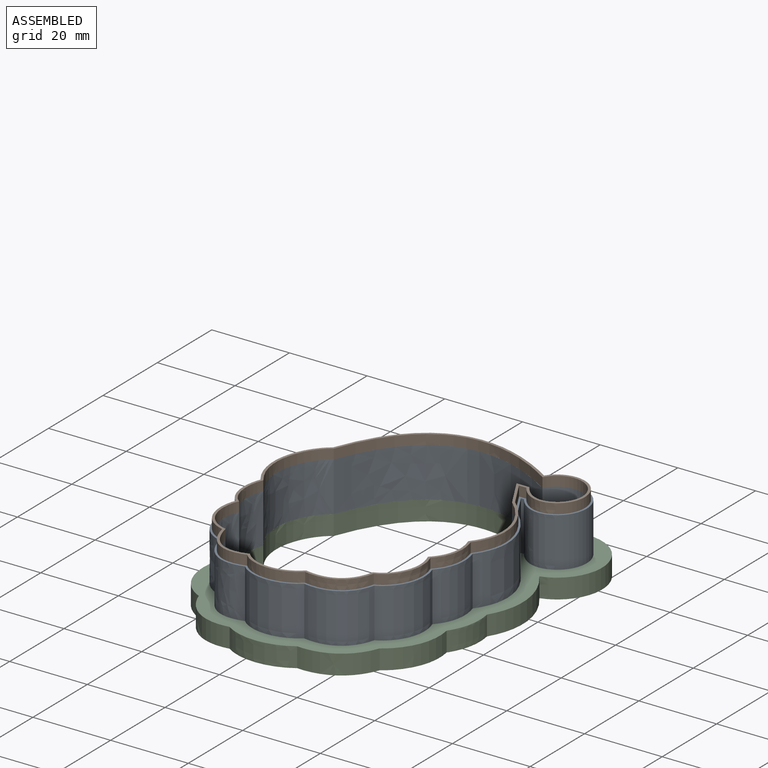
[diagram: assembled view]
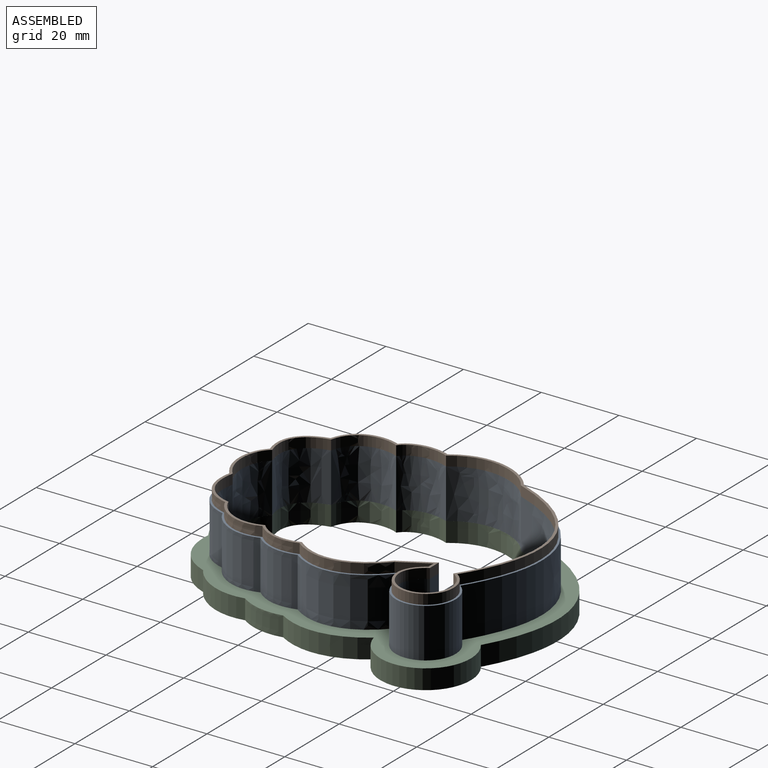
[diagram: assembled view, second angle]
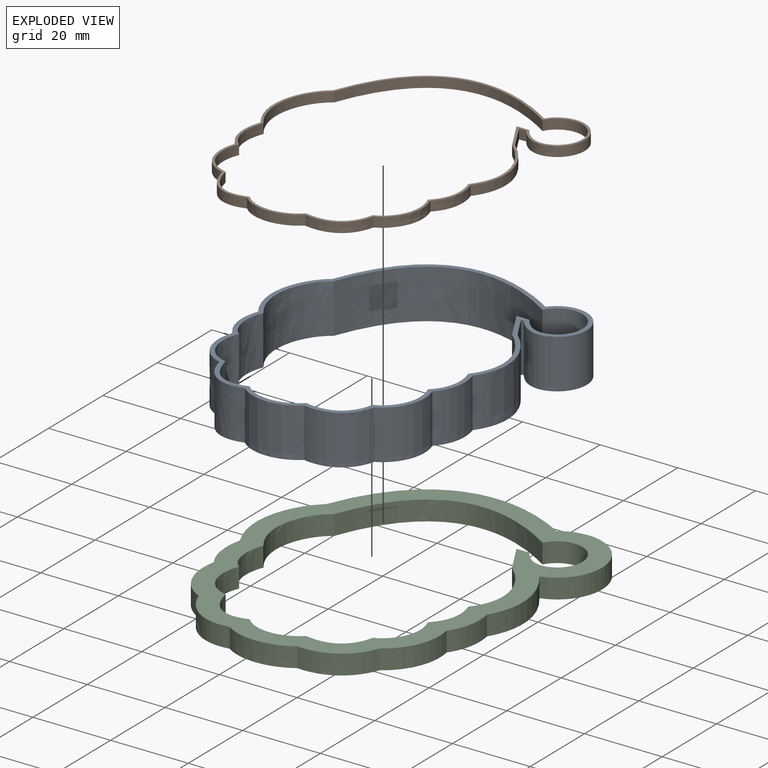
[diagram: exploded view]
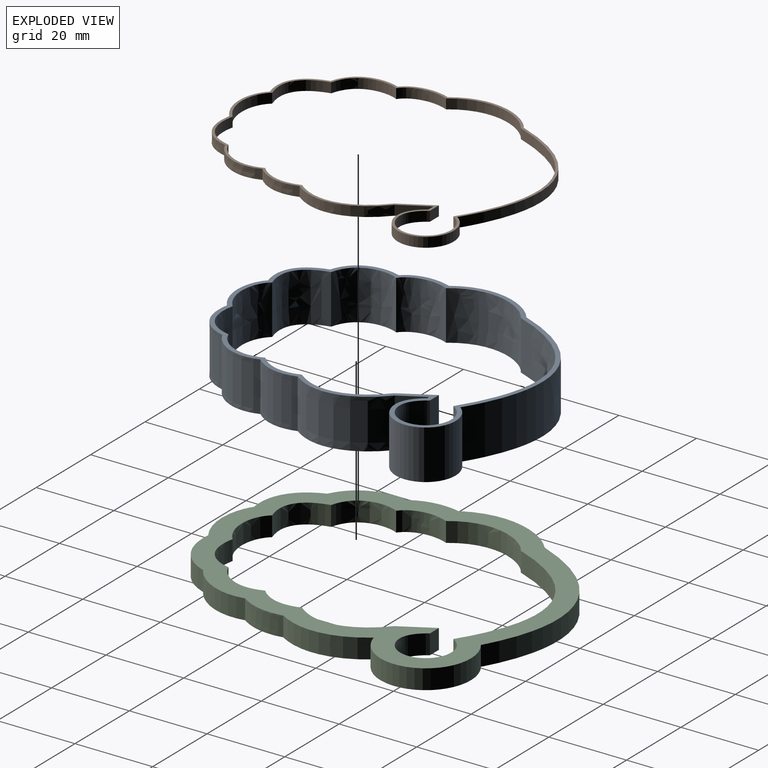
[diagram: exploded view, second angle]
ASSEMBLY  parts=3 mates=2
PART A: 30 faces, bbox 65.1x80.8x12.7 mm
  f0: plane 80.76x65.06mm, normal (0,0,1), area 294.4mm2, adj f2,f3,f4,f5,f6,f7,f8,f9
  f1: plane 80.76x65.06mm, normal (0,0,-1), area 294.4mm2, adj f2,f3,f4,f5,f6,f7,f8,f9
  f2: extruded ~44.81x21.32mm, area 716.9mm2, adj f0,f1,f3,f15
  f3: extruded ~22.34x12.7mm, area 316.4mm2, adj f0,f1,f2,f4
  f4: extruded ~12.7x11.71mm, area 158.4mm2, adj f0,f1,f3,f5
  f5: extruded ~13.48x12.7mm, area 210.8mm2, adj f0,f1,f4,f6
  f6: extruded ~12.7x11.96mm, area 207mm2, adj f0,f1,f5,f7
  f7: extruded ~15.19x12.7mm, area 210.1mm2, adj f0,f1,f6,f8
  f8: extruded ~12.7x12.66mm, area 210.5mm2, adj f0,f1,f7,f9
  f9: extruded ~13.56x12.7mm, area 203.5mm2, adj f0,f1,f8,f10
  f10: extruded ~12.7x11.31mm, area 154.4mm2, adj f0,f1,f9,f11
  f11: extruded ~22.2x12.7mm, area 317.5mm2, adj f0,f1,f10,f12
  f12: plane 12.7x6.36mm, normal (0.87,0.49,0), area 92.6mm2, adj f0,f1,f11,f13
  f13: plane 12.7x0.76mm, normal (0,-1,0), area 9.6mm2, adj f0,f1,f12,f14
  f14: extruded ~12.7x10.54mm, area 155.1mm2, adj f0,f1,f13,f15
  f15: cylinder r=7.71mm len=13.88mm, axis (0,0,-1), area 334.6mm2, adj f0,f1,f2,f14
  f16: extruded ~44.22x20.93mm, area 710.3mm2, adj f0,f1,f17,f29
  f17: extruded ~21.44x12.7mm, area 305.7mm2, adj f0,f1,f16,f18
  f18: extruded ~12.7x11.55mm, area 159mm2, adj f0,f1,f17,f19
  f19: extruded ~12.88x12.7mm, area 205.5mm2, adj f0,f1,f18,f20
  f20: extruded ~12.7x11.34mm, area 200.9mm2, adj f0,f1,f19,f21
  f21: extruded ~14.51x12.7mm, area 204.1mm2, adj f0,f1,f20,f22
  f22: extruded ~12.7x12.02mm, area 203.3mm2, adj f0,f1,f21,f23
  f23: extruded ~12.98x12.7mm, area 197.7mm2, adj f0,f1,f22,f24
  f24: extruded ~12.7x11.24mm, area 155.6mm2, adj f0,f1,f23,f25
  f25: extruded ~21.24x12.7mm, area 305.7mm2, adj f0,f1,f24,f26
  f26: plane 12.7x8.24mm, normal (-0.87,-0.49,0), area 120mm2, adj f0,f1,f25,f27
  f27: plane 12.7x3.32mm, normal (0,1,0), area 42.2mm2, adj f0,f1,f26,f28
  f28: extruded ~12.7x9.25mm, area 139.4mm2, adj f0,f1,f27,f29
  f29: cylinder r=6.57mm len=12.7mm, axis (0,0,-1), area 298.1mm2, adj f0,f1,f16,f28
PART B: 30 faces, bbox 64.5x80.3x2.5 mm
  f0: plane 80.25x64.55mm, normal (0,0,1), area 163.1mm2, adj f2,f3,f4,f5,f6,f7,f8,f9
  f1: plane 80.25x64.55mm, normal (0,0,-1), area 163.1mm2, adj f2,f3,f4,f5,f6,f7,f8,f9
  f2: extruded ~44.53x21.14mm, area 142.7mm2, adj f0,f1,f3,f15
  f3: extruded ~21.94x6.27mm, area 62.3mm2, adj f0,f1,f2,f4
  f4: extruded ~11.65x2.68mm, area 31.7mm2, adj f0,f1,f3,f5
  f5: extruded ~13.21x6.59mm, area 41.7mm2, adj f0,f1,f4,f6
  f6: extruded ~11.68x8.06mm, area 40.8mm2, adj f0,f1,f5,f7
  f7: extruded ~14.89x2.86mm, area 41.5mm2, adj f0,f1,f6,f8
  f8: extruded ~12.37x7.84mm, area 41.4mm2, adj f0,f1,f7,f9
  f9: extruded ~13.31x6.02mm, area 40.2mm2, adj f0,f1,f8,f10
  f10: extruded ~11.28x3.12mm, area 31mm2, adj f0,f1,f9,f11
  f11: extruded ~21.77x6.84mm, area 62.4mm2, adj f0,f1,f10,f12
  f12: plane 7.19x4.04mm, normal (0.87,0.49,0), area 21mm2, adj f0,f1,f11,f13
  f13: plane 2.54x1.89mm, normal (0,-1,0), area 4.8mm2, adj f0,f1,f12,f14
  f14: extruded ~9.97x3.81mm, area 29.6mm2, adj f0,f1,f13,f15
  f15: cylinder r=7.2mm len=13.23mm, axis (0,0,-1), area 63.7mm2, adj f0,f1,f2,f14
  f16: extruded ~44.22x20.93mm, area 142.1mm2, adj f0,f1,f17,f29
  f17: extruded ~21.44x6.15mm, area 61.1mm2, adj f0,f1,f16,f18
  f18: extruded ~11.55x2.84mm, area 31.8mm2, adj f0,f1,f17,f19
  f19: extruded ~12.88x6.49mm, area 41.1mm2, adj f0,f1,f18,f20
  f20: extruded ~11.34x7.94mm, area 40.2mm2, adj f0,f1,f19,f21
  f21: extruded ~14.51x2.91mm, area 40.8mm2, adj f0,f1,f20,f22
  f22: extruded ~12.02x7.69mm, area 40.7mm2, adj f0,f1,f21,f23
  f23: extruded ~12.98x5.93mm, area 39.5mm2, adj f0,f1,f22,f24
  f24: extruded ~11.24x3.23mm, area 31.1mm2, adj f0,f1,f23,f25
  f25: extruded ~21.24x6.71mm, area 61.1mm2, adj f0,f1,f24,f26
  f26: plane 8.24x4.62mm, normal (-0.87,-0.49,0), area 24mm2, adj f0,f1,f25,f27
  f27: plane 3.32x2.54mm, normal (0,1,0), area 8.4mm2, adj f0,f1,f26,f28
  f28: extruded ~9.25x3.81mm, area 27.9mm2, adj f0,f1,f27,f29
  f29: cylinder r=6.57mm len=12.39mm, axis (0,0,-1), area 59.6mm2, adj f0,f1,f16,f28
PART C: 28 faces, bbox 73.1x87.3x5.2 mm
  f0: plane 87.29x73.07mm, normal (0,0,1), area 1321.3mm2, adj f2,f3,f4,f5,f6,f7,f8,f9
  f1: plane 87.29x73.07mm, normal (0,0,-1), area 1321.3mm2, adj f2,f3,f4,f5,f6,f7,f8,f9
  f2: extruded ~47.54x22.8mm, area 300.8mm2, adj f0,f1,f3,f13
  f3: extruded ~25.35x7.03mm, area 141.4mm2, adj f0,f1,f2,f4
  f4: extruded ~12.03x5.08mm, area 63.4mm2, adj f0,f1,f3,f5
  f5: extruded ~15.58x7.4mm, area 93.8mm2, adj f0,f1,f4,f6
  f6: extruded ~14.2x9.13mm, area 93.4mm2, adj f0,f1,f5,f7
  f7: extruded ~17.22x5.08mm, area 92.5mm2, adj f0,f1,f6,f8
  f8: extruded ~14.87x9.19mm, area 95.9mm2, adj f0,f1,f7,f9
  f9: extruded ~15.36x6.76mm, area 89.9mm2, adj f0,f1,f8,f10
  f10: extruded ~11.46x5.08mm, area 61.1mm2, adj f0,f1,f9,f11
  f11: extruded ~21.96x5.08mm, area 119.4mm2, adj f0,f1,f10,f12
  f12: extruded ~5.08x3.73mm, area 21.2mm2, adj f0,f1,f11,f13
  f13: cylinder r=11.65mm len=20.95mm, axis (0,0,-1), area 184mm2, adj f0,f1,f2,f12
  f14: extruded ~44.22x20.93mm, area 284.1mm2, adj f0,f1,f15,f27
  f15: extruded ~21.44x6.15mm, area 122.3mm2, adj f0,f1,f14,f16
  f16: extruded ~11.55x5.08mm, area 63.6mm2, adj f0,f1,f15,f17
  f17: extruded ~12.88x6.49mm, area 82.2mm2, adj f0,f1,f16,f18
  f18: extruded ~11.34x7.94mm, area 80.4mm2, adj f0,f1,f17,f19
  f19: extruded ~14.51x5.08mm, area 81.6mm2, adj f0,f1,f18,f20
  f20: extruded ~12.02x7.69mm, area 81.3mm2, adj f0,f1,f19,f21
  f21: extruded ~12.98x5.93mm, area 79.1mm2, adj f0,f1,f20,f22
  f22: extruded ~11.24x5.08mm, area 62.2mm2, adj f0,f1,f21,f23
  f23: extruded ~21.24x6.71mm, area 122.3mm2, adj f0,f1,f22,f24
  f24: plane 8.24x5.08mm, normal (-0.87,-0.49,0), area 48mm2, adj f0,f1,f23,f25
  f25: plane 5.08x3.32mm, normal (0,1,0), area 16.9mm2, adj f0,f1,f24,f26
  f26: extruded ~9.25x5.08mm, area 55.7mm2, adj f0,f1,f25,f27
  f27: cylinder r=6.57mm len=12.39mm, axis (0,0,-1), area 119.3mm2, adj f0,f1,f14,f26
PLACE A t=(88.55,-7.01,3.81)mm
PLACE B t=(155.42,-3.52,16.51)mm
PLACE C t=(0,0,-1.27)mm
MATE fastened B.f1 <-> A.f0  axis (0,0,1) through (46.22,-4.12,16.51)mm
MATE fastened A.f1 <-> C.f0  axis (0,0,1) through (46.22,-4.12,3.81)mm
